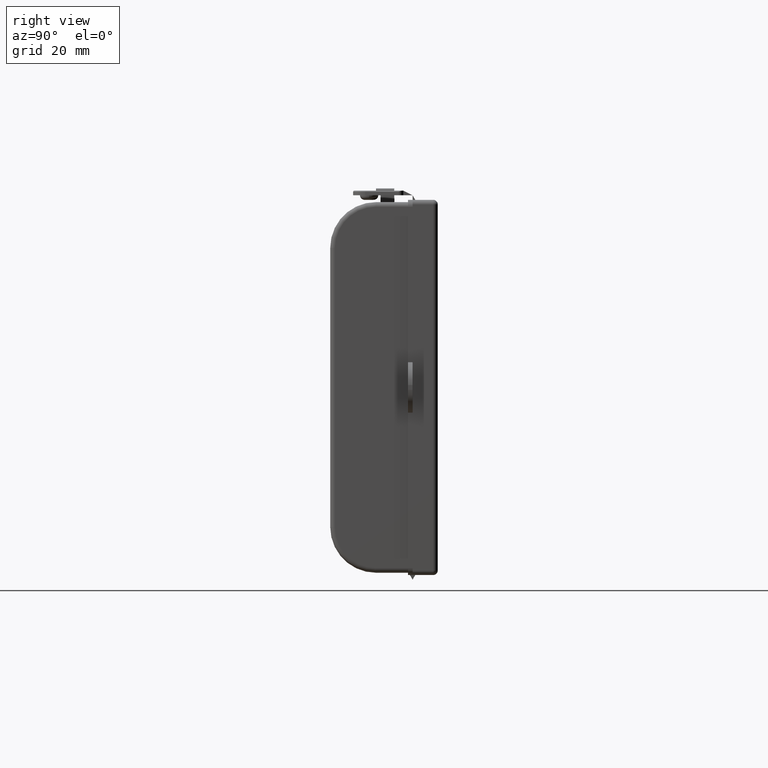
[diagram: clean part render]
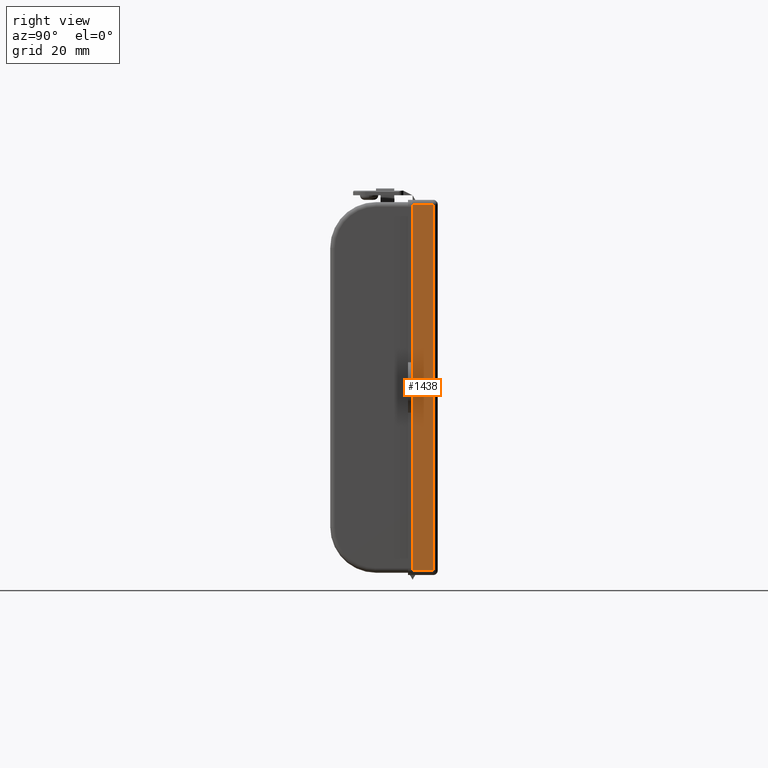
[diagram: same view with one face highlighted and labeled with its STEP entity id]
A machine part, right view. The second image highlights one B-rep face of the part: STEP entity #1438.
In plain terms, the highlighted planar face has unit normal (-1, 0, 0).
Its self-contained STEP definition (entity closure, byte-faithful):
#63 = CARTESIAN_POINT ( 'NONE',  ( 58.99999999999996447, 6.500000000000000000, -41.00000000000000711 ) ) ;
#84 = AXIS2_PLACEMENT_3D ( 'NONE', #63, #189, #5236 ) ;
#189 = DIRECTION ( 'NONE',  ( -1.000000000000000000, 0.000000000000000000, 1.692413147294446463E-16 ) ) ;
#433 = EDGE_LOOP ( 'NONE', ( #511, #8028, #951, #6968 ) ) ;
#511 = ORIENTED_EDGE ( 'NONE', *, *, #3014, .T. ) ;
#583 = CARTESIAN_POINT ( 'NONE',  ( 58.99999999999997868, 1.000000000000000000, 39.99999999999997868 ) ) ;
#702 = EDGE_CURVE ( 'NONE', #2094, #3535, #3434, .T. ) ;
#732 = FACE_OUTER_BOUND ( 'NONE', #433, .T. ) ;
#822 = EDGE_CURVE ( 'NONE', #4775, #4637, #3557, .T. ) ;
#951 = ORIENTED_EDGE ( 'NONE', *, *, #6336, .T. ) ;
#1438 = ADVANCED_FACE ( 'NONE', ( #732 ), #5861, .F. ) ;
#2003 = VECTOR ( 'NONE', #2270, 1000.000000000000000 ) ;
#2076 = CARTESIAN_POINT ( 'NONE',  ( 58.99999999999996447, 5.500000000000000000, -40.00000000000000711 ) ) ;
#2094 = VERTEX_POINT ( 'NONE', #8117 ) ;
#2125 = LINE ( 'NONE', #7166, #6693 ) ;
#2270 = DIRECTION ( 'NONE',  ( 0.000000000000000000, -1.000000000000000000, 0.000000000000000000 ) ) ;
#2413 = CARTESIAN_POINT ( 'NONE',  ( 58.99999999999997868, 5.500000000000000000, 39.99999999999997868 ) ) ;
#3014 = EDGE_CURVE ( 'NONE', #2094, #4775, #2125, .T. ) ;
#3434 = LINE ( 'NONE', #6583, #4398 ) ;
#3535 = VERTEX_POINT ( 'NONE', #583 ) ;
#3557 = LINE ( 'NONE', #4257, #3614 ) ;
#3614 = VECTOR ( 'NONE', #5006, 1000.000000000000000 ) ;
#4257 = CARTESIAN_POINT ( 'NONE',  ( 58.99999999999997868, 5.500000000000000000, 39.99999999999997868 ) ) ;
#4398 = VECTOR ( 'NONE', #7943, 1000.000000000000000 ) ;
#4637 = VERTEX_POINT ( 'NONE', #2413 ) ;
#4775 = VERTEX_POINT ( 'NONE', #2076 ) ;
#4831 = LINE ( 'NONE', #5579, #2003 ) ;
#5006 = DIRECTION ( 'NONE',  ( 1.692413147294446463E-16, -0.000000000000000000, 1.000000000000000000 ) ) ;
#5236 = DIRECTION ( 'NONE',  ( 1.692413147294446463E-16, 0.000000000000000000, 1.000000000000000000 ) ) ;
#5579 = CARTESIAN_POINT ( 'NONE',  ( 58.99999999999997868, 6.500000000000000000, 39.99999999999997868 ) ) ;
#5861 = PLANE ( 'NONE',  #84 ) ;
#6336 = EDGE_CURVE ( 'NONE', #4637, #3535, #4831, .T. ) ;
#6583 = CARTESIAN_POINT ( 'NONE',  ( 58.99999999999997158, 1.000000000000000000, -9.985237569037226193E-15 ) ) ;
#6693 = VECTOR ( 'NONE', #7828, 1000.000000000000000 ) ;
#6968 = ORIENTED_EDGE ( 'NONE', *, *, #702, .F. ) ;
#7166 = CARTESIAN_POINT ( 'NONE',  ( 58.99999999999996447, 6.500000000000000000, -40.00000000000000711 ) ) ;
#7828 = DIRECTION ( 'NONE',  ( -0.000000000000000000, 1.000000000000000000, -0.000000000000000000 ) ) ;
#7943 = DIRECTION ( 'NONE',  ( 1.692413147294445970E-16, 0.000000000000000000, 1.000000000000000000 ) ) ;
#8028 = ORIENTED_EDGE ( 'NONE', *, *, #822, .T. ) ;
#8117 = CARTESIAN_POINT ( 'NONE',  ( 58.99999999999996447, 1.000000000000000000, -40.00000000000000711 ) ) ;